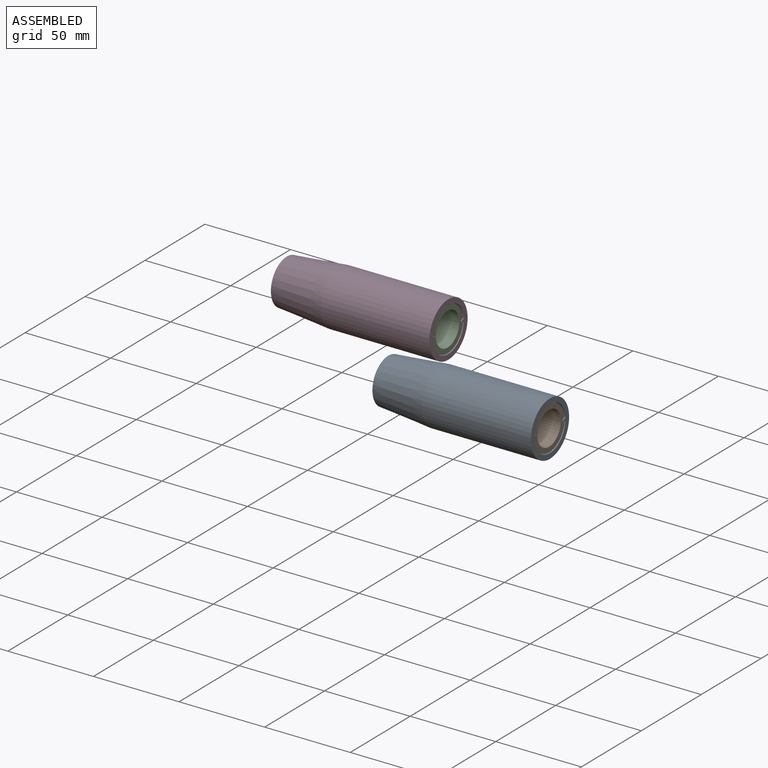
[diagram: assembled view]
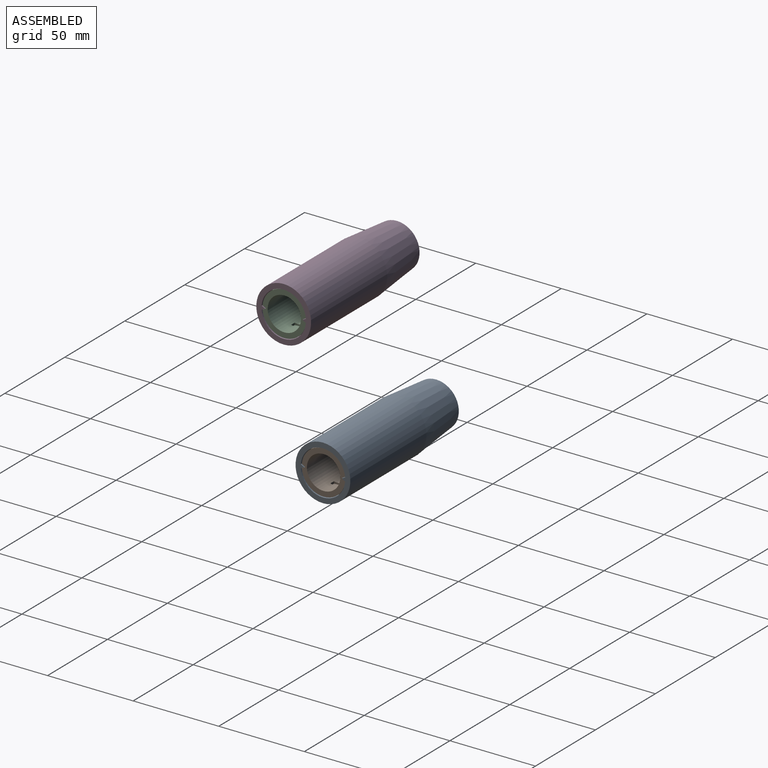
[diagram: assembled view, second angle]
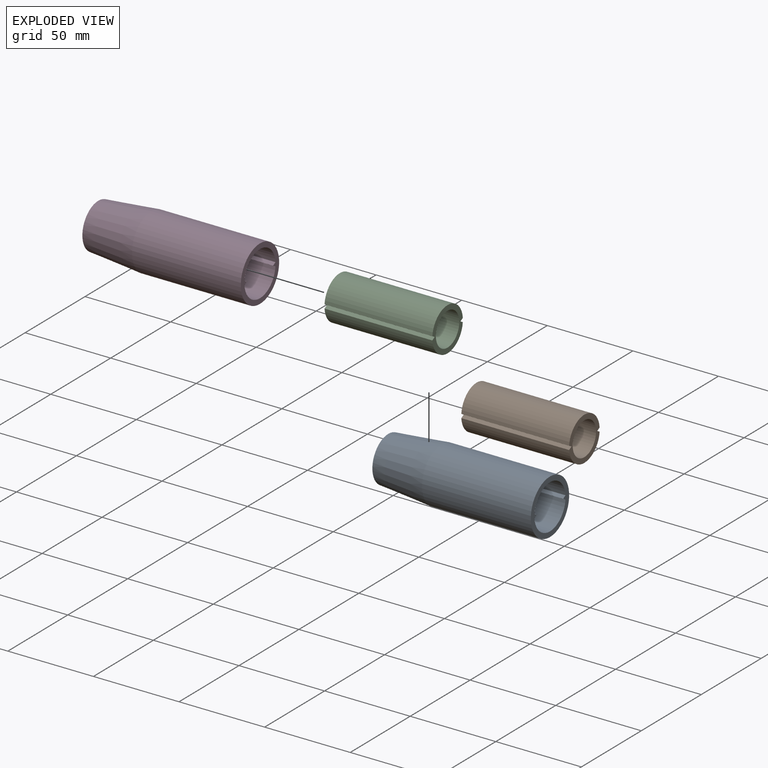
[diagram: exploded view]
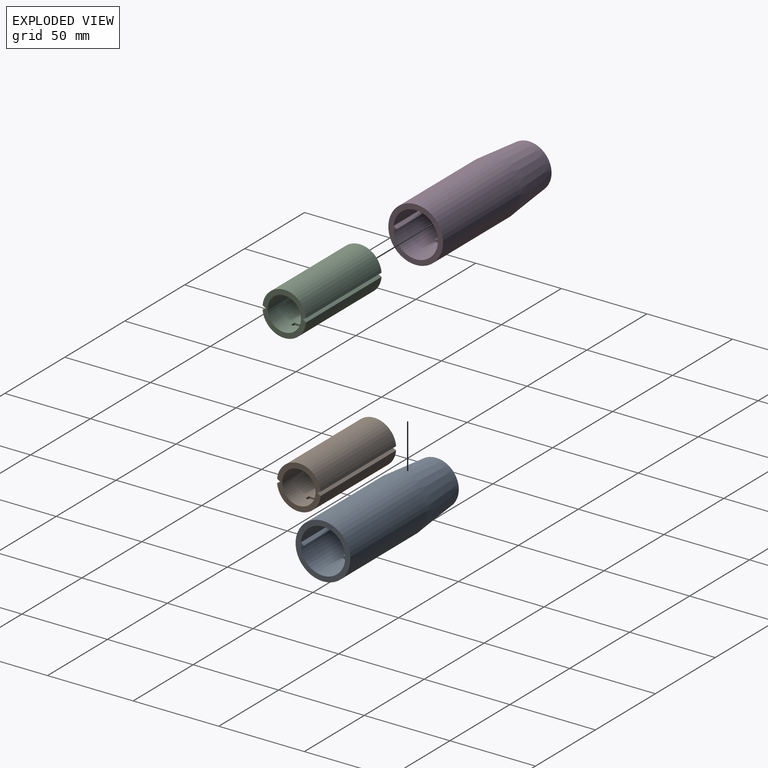
[diagram: exploded view, second angle]
ASSEMBLY  parts=4 mates=2
PART A: 42 faces, bbox 94.5x32x32 mm
  f0: cone r=5mm half-angle=35deg, axis (-1,0,0), area 98.6mm2, adj f11,f38,f39,f40,f41
  f1: plane 6.36x2.12mm, normal (-1,0,0), area 5mm2, adj f13,f34,f35,f36,f39
  f2: plane 5.51x3.25mm, normal (-1,0,0), area 5mm2, adj f13,f31,f32,f33,f41
  f3: plane 16x15.85mm, normal (-1,0,0), area 118mm2, adj f4,f13,f14,f24,f25,f26,f27
  f4: cylinder r=8mm len=15.85mm, axis (-1,0,0), area 343.6mm2, adj f3,f15,f24,f26
  f5: plane 25.9x13mm, normal (1,0,0), area 73.1mm2, adj f7,f10,f20,f22
  f6: cylinder r=13mm len=63.5mm, axis (-1,0,0), area 2450.1mm2, adj f8,f9,f21,f23
  f7: cylinder r=13mm len=63.5mm, axis (-1,0,0), area 2450.1mm2, adj f5,f9,f20,f22
  f8: plane 25.9x13mm, normal (1,0,0), area 73.1mm2, adj f6,f10,f21,f23
  f9: plane 32x32mm, normal (1,0,0), area 277.9mm2, adj f6,f7,f19,f20,f21,f22,f23
  f10: cylinder r=11mm len=22mm, axis (-1,0,0), area 898.5mm2, adj f5,f8,f11
  f11: plane 22x22mm, normal (1,0,0), area 301.6mm2, adj f0,f10,f13
  f12: plane 5.51x3.25mm, normal (-1,0,0), area 5mm2, adj f13,f28,f29,f30,f40
  f13: cylinder r=5mm len=18mm, axis (-1,0,0), area 476.1mm2, adj f1,f2,f3,f11,f12,f28,f30,f31
  f14: cylinder r=8mm len=15.85mm, axis (-1,0,0), area 343.6mm2, adj f3,f15,f25,f27
  f15: plane 22.4x22.4mm, normal (-1,0,0), area 197.5mm2, adj f4,f14,f16,f24,f25,f26,f27
  f16: cylinder r=11.2mm len=22.4mm, axis (-1,0,0), area 1055.6mm2, adj f15,f17
  f17: plane 26.4x26.4mm, normal (-1,0,0), area 153.3mm2, adj f16,f18
  f18: cone r=13.2mm half-angle=5.2deg, axis (1,0,0), area 2855.3mm2, adj f17,f19
  f19: cylinder r=16mm len=63.5mm, axis (-1,0,0), area 6383.7mm2, adj f9,f18
  f20: plane 63.5x1.95mm, normal (0,0.5,0.87), area 143.1mm2, adj f5,f7,f9,f21
  f21: plane 63.5x1.95mm, normal (0,0.5,-0.87), area 143.1mm2, adj f6,f8,f9,f20
  f22: plane 63.5x1.95mm, normal (0,-0.5,0.87), area 143.1mm2, adj f5,f7,f9,f23
  f23: plane 63.5x1.95mm, normal (0,-0.5,-0.87), area 143.1mm2, adj f6,f8,f9,f22
  f24: plane 15x1.92mm, normal (0,0.5,0.87), area 33.3mm2, adj f3,f4,f15,f25
  f25: plane 15x1.92mm, normal (0,0.5,-0.87), area 33.3mm2, adj f3,f14,f15,f24
  f26: plane 15x1.92mm, normal (0,-0.5,0.87), area 33.3mm2, adj f3,f4,f15,f27
  f27: plane 15x1.92mm, normal (0,-0.5,-0.87), area 33.3mm2, adj f3,f14,f15,f26
  f28: plane 3x2.58mm, normal (0,0.54,-0.84), area 9.2mm2, adj f12,f13,f29,f37
  f29: cylinder r=2.5mm len=3mm, axis (1,0,0), area 2.7mm2, adj f12,f28,f30,f37
  f30: plane 3.07x3mm, normal (0,1,-0.05), area 9.2mm2, adj f12,f13,f29,f37
  f31: plane 3.07x3mm, normal (0,-1,-0.05), area 9.2mm2, adj f2,f13,f32,f37
  f32: cylinder r=2.5mm len=3mm, axis (1,0,0), area 2.7mm2, adj f2,f31,f33,f37
  f33: plane 3x2.58mm, normal (0,-0.54,-0.84), area 9.2mm2, adj f2,f13,f32,f37
  f34: plane 3x2.74mm, normal (0,0.45,0.89), area 9.2mm2, adj f1,f13,f35,f37
  f35: cylinder r=2.5mm len=3mm, axis (1,0,0), area 2.7mm2, adj f1,f34,f36,f37
  f36: plane 3x2.74mm, normal (0,-0.45,0.89), area 9.2mm2, adj f1,f13,f35,f37
  f37: plane 9.86x8.86mm, normal (-1,0,0), area 48.5mm2, adj f13,f28,f29,f30,f31,f32,f33,f34
  f38: cone r=1.5mm half-angle=16.7deg, axis (-1,0,0), area 24.6mm2, adj f0
  f39: cylinder r=2.17mm len=5.5mm, axis (-1,0,0), area 23.2mm2, adj f0,f1,f13
  f40: cylinder r=2.17mm len=5.5mm, axis (-1,0,0), area 23.2mm2, adj f0,f12,f13
  f41: cylinder r=2.17mm len=5.5mm, axis (-1,0,0), area 23.2mm2, adj f0,f2,f13
PART B: 24 faces, bbox 63x25.4x25.5 mm
  f0: cylinder r=9.75mm len=54.43mm, axis (-1,0,0), area 3310.2mm2, adj f2,f3,f15,f16,f17,f18,f19,f20
  f1: cylinder r=12.75mm len=63mm, axis (-1,0,0), area 2381.4mm2, adj f2,f8,f10,f12
  f2: plane 25.5x25.4mm, normal (1,0,0), area 207.5mm2, adj f0,f1,f9,f10,f11,f12,f13
  f3: cone r=7.25mm half-angle=35deg, axis (1,0,0), area 232.8mm2, adj f0,f4
  f4: cylinder r=7.25mm len=14.5mm, axis (-1,0,0), area 91.1mm2, adj f3,f5
  f5: plane 14.5x14.5mm, normal (1,0,0), area 55.8mm2, adj f4,f6
  f6: cone r=4.5mm half-angle=35deg, axis (1,0,0), area 79.8mm2, adj f5,f7
  f7: cylinder r=4.5mm len=9mm, axis (-1,0,0), area 28.3mm2, adj f6,f8
  f8: plane 25.5x25.4mm, normal (-1,0,0), area 442.5mm2, adj f1,f7,f9,f10,f11,f12,f13
  f9: cylinder r=12.75mm len=63mm, axis (-1,0,0), area 2381.4mm2, adj f2,f8,f11,f13
  f10: plane 63x1.95mm, normal (0,-0.5,-0.87), area 141.9mm2, adj f1,f2,f8,f11
  f11: plane 63x1.95mm, normal (0,-0.5,0.87), area 141.9mm2, adj f2,f8,f9,f10
  f12: plane 63x1.95mm, normal (0,0.5,-0.87), area 141.9mm2, adj f1,f2,f8,f13
  f13: plane 63x1.95mm, normal (0,0.5,0.87), area 141.9mm2, adj f2,f8,f9,f12
  f14: plane 4x3mm, normal (0,0,-1), area 12mm2, adj f15,f16,f17,f18
  f15: plane 4x1.21mm, normal (-1,0,0), area 4.3mm2, adj f0,f14,f16,f18
  f16: plane 3x1.21mm, normal (0,1,0), area 3.6mm2, adj f0,f14,f15,f17
  f17: plane 4x1.21mm, normal (1,0,0), area 4.3mm2, adj f0,f14,f16,f18
  f18: plane 3x1.21mm, normal (0,-1,0), area 3.6mm2, adj f0,f14,f15,f17
  f19: plane 3x1.21mm, normal (0,-1,0), area 3.6mm2, adj f0,f20,f22,f23
  f20: plane 4x1.21mm, normal (1,0,0), area 4.3mm2, adj f0,f19,f21,f23
  f21: plane 3x1.21mm, normal (0,1,0), area 3.6mm2, adj f0,f20,f22,f23
  f22: plane 4x1.21mm, normal (-1,0,0), area 4.3mm2, adj f0,f19,f21,f23
  f23: plane 4x3mm, normal (0,0,1), area 12mm2, adj f19,f20,f21,f22
PART C: same geometry as B
PART D: 31 faces, bbox 94.5x32x32 mm
  f0: cylinder r=5mm len=13mm, axis (-1,0,0), area 150.7mm2, adj f2,f25,f26,f30
  f1: cylinder r=5mm len=13mm, axis (-1,0,0), area 150.7mm2, adj f2,f25,f26,f30
  f2: plane 22x22mm, normal (1,0,0), area 291.9mm2, adj f0,f1,f10,f25,f26
  f3: plane 16x15.85mm, normal (-1,0,0), area 148.4mm2, adj f4,f11,f21,f22,f23,f24,f25,f26
  f4: cylinder r=8mm len=15.85mm, axis (-1,0,0), area 343.6mm2, adj f3,f12,f21,f23
  f5: plane 25.9x13mm, normal (1,0,0), area 73.1mm2, adj f7,f10,f17,f19
  f6: cylinder r=13mm len=63.5mm, axis (-1,0,0), area 2450.1mm2, adj f8,f9,f18,f20
  f7: cylinder r=13mm len=63.5mm, axis (-1,0,0), area 2450.1mm2, adj f5,f9,f17,f19
  f8: plane 25.9x13mm, normal (1,0,0), area 73.1mm2, adj f6,f10,f18,f20
  f9: plane 32x32mm, normal (1,0,0), area 277.9mm2, adj f6,f7,f16,f17,f18,f19,f20
  f10: cylinder r=11mm len=22mm, axis (-1,0,0), area 898.5mm2, adj f2,f5,f8
  f11: cylinder r=8mm len=15.85mm, axis (-1,0,0), area 343.6mm2, adj f3,f12,f22,f24
  f12: plane 22.4x22.4mm, normal (-1,0,0), area 197.5mm2, adj f4,f11,f13,f21,f22,f23,f24
  f13: cylinder r=11.2mm len=22.4mm, axis (-1,0,0), area 1055.6mm2, adj f12,f14
  f14: plane 26.4x26.4mm, normal (-1,0,0), area 153.3mm2, adj f13,f15
  f15: cone r=13.2mm half-angle=5.2deg, axis (1,0,0), area 2855.3mm2, adj f14,f16
  f16: cylinder r=16mm len=63.5mm, axis (-1,0,0), area 6383.7mm2, adj f9,f15
  f17: plane 63.5x1.95mm, normal (0,0.5,0.87), area 143.1mm2, adj f5,f7,f9,f18
  f18: plane 63.5x1.95mm, normal (0,0.5,-0.87), area 143.1mm2, adj f6,f8,f9,f17
  f19: plane 63.5x1.95mm, normal (0,-0.5,0.87), area 143.1mm2, adj f5,f7,f9,f20
  f20: plane 63.5x1.95mm, normal (0,-0.5,-0.87), area 143.1mm2, adj f6,f8,f9,f19
  f21: plane 15x1.92mm, normal (0,0.5,0.87), area 33.3mm2, adj f3,f4,f12,f22
  f22: plane 15x1.92mm, normal (0,0.5,-0.87), area 33.3mm2, adj f3,f11,f12,f21
  f23: plane 15x1.92mm, normal (0,-0.5,0.87), area 33.3mm2, adj f3,f4,f12,f24
  f24: plane 15x1.92mm, normal (0,-0.5,-0.87), area 33.3mm2, adj f3,f11,f12,f23
  f25: cylinder r=2mm len=18mm, axis (-1,0,0), area 110.2mm2, adj f0,f1,f2,f3,f27
  f26: cylinder r=2mm len=18mm, axis (-1,0,0), area 110.2mm2, adj f0,f1,f2,f3,f28
  f27: cylinder r=5mm len=5mm, axis (-1,0,0), area 20.6mm2, adj f3,f25,f30
  f28: cylinder r=5mm len=5mm, axis (-1,0,0), area 20.6mm2, adj f3,f26,f30
  f29: cylinder r=3.5mm len=7mm, axis (-1,0,0), area 110mm2, adj f3,f30
  f30: plane 10x10mm, normal (1,0,0), area 40.1mm2, adj f0,f1,f27,f28,f29
PLACE A t=(-8.36,0,-0.01)mm
PLACE B t=(9.64,0,-0.01)mm
PLACE C t=(-19.39,-43.24,61.08)mm
PLACE D t=(-37.39,-43.24,61.08)mm
MATE fastened A.f4 <-> B.f0  axis (1,0,0) through (-21.86,0,-0.01)mm
MATE fastened C.f0 <-> D.f0  axis (-1,0,0) through (-50.89,-43.24,61.08)mm
